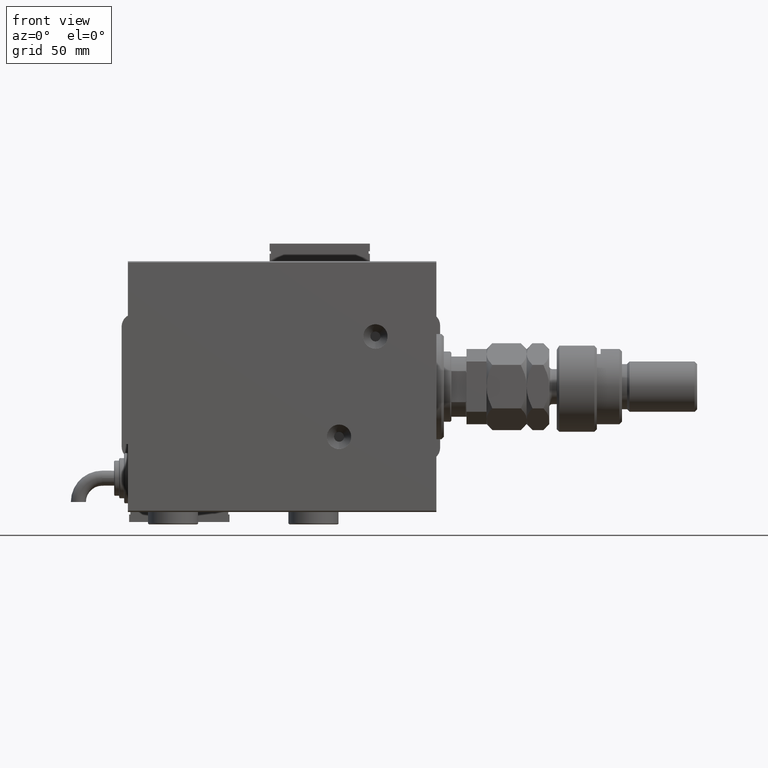
[diagram: clean part render]
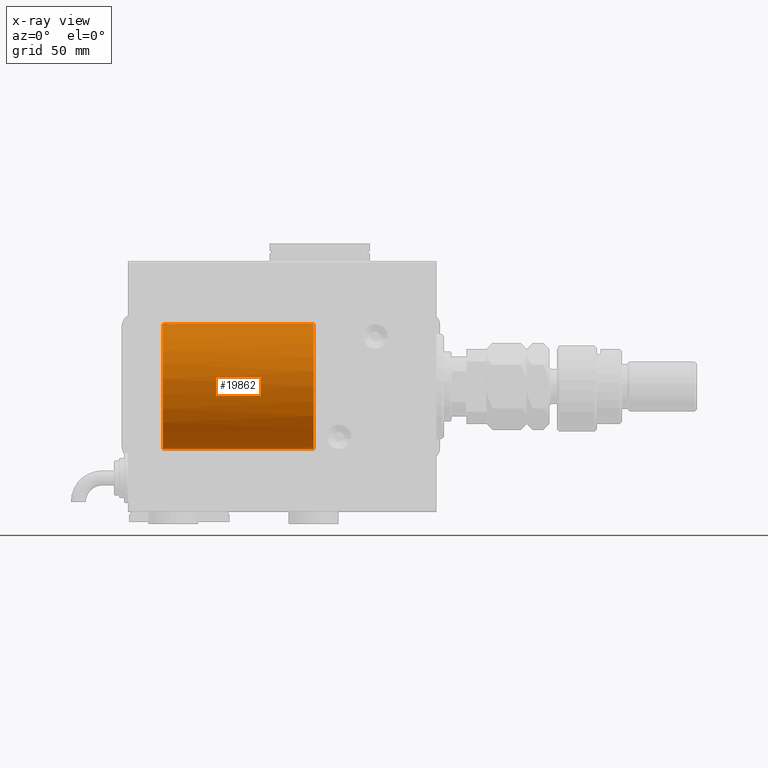
[diagram: x-ray — body ghosted, one internal face saturated and labeled with its STEP entity id]
A machine part, front view, then the same camera in x-ray: the body is ghosted and one INTERNAL B-rep face — a face not visible from any outside direction — is saturated and labeled: STEP entity #19862.
In plain terms, the highlighted cylindrical surface (partial cylindrical patch) has radius 25 mm, axis along (1, -0, 0).
Its self-contained STEP definition (entity closure, byte-faithful):
#109 = CARTESIAN_POINT ( 'NONE',  ( 50.65306428591296140, -1.882540433157142035, -24.92928812645855530 ) ) ;
#999 = CARTESIAN_POINT ( 'NONE',  ( 107.4841784005765390, -0.3254210271412219524, -24.99840249400844172 ) ) ;
#1082 = CARTESIAN_POINT ( 'NONE',  ( 48.99999999999999289, -2.499999999999999112, -24.87468592766549946 ) ) ;
#1441 = CARTESIAN_POINT ( 'NONE',  ( 49.32768231724819685, -2.483776228966070310, 24.87633159203414124 ) ) ;
#1522 = CARTESIAN_POINT ( 'NONE',  ( 51.50000000000000711, 1.027162637006531020E-28, 25.00000000000000000 ) ) ;
#1655 = CARTESIAN_POINT ( 'NONE',  ( 105.6490439016909590, -2.419770561643915574, -24.88263927071751169 ) ) ;
#1912 = ORIENTED_EDGE ( 'NONE', *, *, #49132, .F. ) ;
#2287 = CARTESIAN_POINT ( 'NONE',  ( 102.5000000000000000, -5.212883661637730998E-15, -25.00000000000000000 ) ) ;
#2468 = CIRCLE ( 'NONE', #58783, 25.00000000000000000 ) ;
#2479 = ORIENTED_EDGE ( 'NONE', *, *, #61893, .T. ) ;
#2598 = CARTESIAN_POINT ( 'NONE',  ( 103.3487886644088860, -1.884161199660622232, -24.92916496727982434 ) ) ;
#2912 = CARTESIAN_POINT ( 'NONE',  ( 103.1181404585135795, -1.653834020452944253, -24.94550385189586095 ) ) ;
#2993 = CARTESIAN_POINT ( 'NONE',  ( 105.6456066614863261, -2.420689345803777037, 24.88254961038872892 ) ) ;
#3204 = VERTEX_POINT ( 'NONE', #18310 ) ;
#3404 = CARTESIAN_POINT ( 'NONE',  ( 109.0000000000000000, 0.000000000000000000, 25.00000000000000000 ) ) ;
#6063 = VERTEX_POINT ( 'NONE', #62403 ) ;
#6117 = ORIENTED_EDGE ( 'NONE', *, *, #35328, .T. ) ;
#6548 = CARTESIAN_POINT ( 'NONE',  ( 106.9874981583439961, -1.525407911884373080, -24.95379469572362652 ) ) ;
#6864 = CARTESIAN_POINT ( 'NONE',  ( 102.8317235850604021, -1.255214705003182996, -24.96884293994578030 ) ) ;
#7279 = CARTESIAN_POINT ( 'NONE',  ( 49.64713194170840183, -2.420276907015970647, 24.88258984763800896 ) ) ;
#7570 = CARTESIAN_POINT ( 'NONE',  ( 103.0125018416560181, -1.525407911884385515, 24.95379469572361941 ) ) ;
#7889 = CARTESIAN_POINT ( 'NONE',  ( 106.5225677434019360, -1.989585286700267241, 24.92087098724766392 ) ) ;
#8115 = DIRECTION ( 'NONE',  ( -1.000000000000000000, -0.000000000000000000, -0.000000000000000000 ) ) ;
#8546 = CARTESIAN_POINT ( 'NONE',  ( 106.2508402392405600, -2.170728182476741708, 24.90574631553725027 ) ) ;
#8911 = DIRECTION ( 'NONE',  ( -1.000000000000000000, -0.000000000000000000, -0.000000000000000000 ) ) ;
#10231 = CARTESIAN_POINT ( 'NONE',  ( 50.88355788756845044, -1.651904870145708637, -24.94563238874589217 ) ) ;
#10644 = ORIENTED_EDGE ( 'NONE', *, *, #43603, .T. ) ;
#10890 = CARTESIAN_POINT ( 'NONE',  ( 51.37203761003154767, -0.8062086779018831084, -24.98745104517488613 ) ) ;
#11127 = CARTESIAN_POINT ( 'NONE',  ( 103.8927615416159114, -2.247417070759903712, -24.89885693081946272 ) ) ;
#11532 = CARTESIAN_POINT ( 'NONE',  ( 51.42007142650475515, -0.6483226838983270346, -24.99211332904765115 ) ) ;
#12087 = CARTESIAN_POINT ( 'NONE',  ( 103.0146196628290767, -1.528152964861313690, -24.95362559291379156 ) ) ;
#12503 = CARTESIAN_POINT ( 'NONE',  ( 50.88242608748713991, -1.653181027035657946, 24.94554706660810339 ) ) ;
#12716 = CARTESIAN_POINT ( 'NONE',  ( 102.5000000000000284, -0.3305063766663799973, -25.00000000000001421 ) ) ;
#12802 = CARTESIAN_POINT ( 'NONE',  ( 103.3461666385066167, -1.881857718844728522, 24.92933960374834612 ) ) ;
#13124 = CARTESIAN_POINT ( 'NONE',  ( 103.7461680457549704, -2.169003991399890197, 24.90589728951138682 ) ) ;
#13443 = CARTESIAN_POINT ( 'NONE',  ( 103.8896320349113722, -2.245863995402923141, 24.89899750494196340 ) ) ;
#14804 = ORIENTED_EDGE ( 'NONE', *, *, #57315, .T. ) ;
#15058 = CARTESIAN_POINT ( 'NONE',  ( 48.99999999999999289, -2.500000000000020872, 24.87468592766549946 ) ) ;
#15367 = CARTESIAN_POINT ( 'NONE',  ( 106.2538319542450154, -2.169003991399875986, -24.90589728951138682 ) ) ;
#15784 = CARTESIAN_POINT ( 'NONE',  ( 49.16525157688247560, -2.500000000000000000, -24.87468592766549591 ) ) ;
#16024 = CARTESIAN_POINT ( 'NONE',  ( 104.8367641036145415, -2.500125740978201616, -24.87467329022545570 ) ) ;
#16426 = CARTESIAN_POINT ( 'NONE',  ( 50.98702174305361012, -1.526036272874677246, -24.95375646594394681 ) ) ;
#16461 = CARTESIAN_POINT ( 'NONE',  ( 50.98585726474311741, -1.527525313726071587, 24.95366383271957389 ) ) ;
#17060 = CARTESIAN_POINT ( 'NONE',  ( 102.4999999999999716, -0.1631750940176211473, 25.00000000000000711 ) ) ;
#17293 = CARTESIAN_POINT ( 'NONE',  ( 103.4774322565980924, -1.989585286700254141, -24.92087098724766747 ) ) ;
#17373 = CARTESIAN_POINT ( 'NONE',  ( 107.1682764149395979, -1.255214705003186548, 24.96884293994578030 ) ) ;
#17690 = CARTESIAN_POINT ( 'NONE',  ( 106.6512113355911424, -1.884161199660635777, 24.92916496727982434 ) ) ;
#18310 = CARTESIAN_POINT ( 'NONE',  ( 107.5000000000000000, 3.061616978466108082E-15, -25.00000000000000000 ) ) ;
#18337 = CARTESIAN_POINT ( 'NONE',  ( 107.5000000000000000, 4.348838763822197640E-16, 25.00000000000000000 ) ) ;
#18750 = LINE ( 'NONE', #3404, #26842 ) ;
#19862 = ADVANCED_FACE ( 'NONE', ( #44803 ), #58557, .F. ) ;
#20841 = B_SPLINE_CURVE_WITH_KNOTS ( 'NONE', 3,
 ( #30126, #60524, #54960, #11532, #10890, #25556, #40599, #16426, #10231, #109, #39950, #59872, #45804, #51045, #45165, #40277, #15784, #1082 ),
 .UNSPECIFIED., .F., .F.,
 ( 4, 2, 2, 2, 2, 2, 2, 2, 4 ),
 ( 0.007821024441662318902, 0.008309959865666821655, 0.008798895289671324407, 0.009287830713675827160, 0.009776766137680331648, 0.01026570156168483440, 0.01075463698568933715, 0.01124357240969384164, 0.01173250783369834439 ),
 .UNSPECIFIED. ) ;
#20937 = CARTESIAN_POINT ( 'NONE',  ( 107.3721596940860650, -0.8058335233485485194, -24.98746277938382576 ) ) ;
#21681 = CARTESIAN_POINT ( 'NONE',  ( 51.43355748388673021, -0.6585516374675790541, 24.99313407876476845 ) ) ;
#22282 = CARTESIAN_POINT ( 'NONE',  ( 102.8298870971907348, -1.252049606094355783, 24.96900299967627035 ) ) ;
#22305 = CARTESIAN_POINT ( 'NONE',  ( 50.10843587962992274, -2.246820166682036657, 24.89891093247707232 ) ) ;
#22386 = CARTESIAN_POINT ( 'NONE',  ( 48.99999999999999289, 0.000000000000000000, 0.000000000000000000 ) ) ;
#22592 = CARTESIAN_POINT ( 'NONE',  ( 102.5000000000000000, -1.940242839436339586E-23, 25.00000000000000000 ) ) ;
#22829 = CARTESIAN_POINT ( 'NONE',  ( 102.5665064476025350, -0.6588655613945889611, -24.99312727339970763 ) ) ;
#23189 = ORIENTED_EDGE ( 'NONE', *, *, #58782, .T. ) ;
#23269 = CARTESIAN_POINT ( 'NONE',  ( 51.50000000000000711, 1.027162637006531020E-28, 25.00000000000000000 ) ) ;
#23331 = DIRECTION ( 'NONE',  ( -1.000000000000000000, -0.000000000000000000, -0.000000000000000000 ) ) ;
#24080 = CARTESIAN_POINT ( 'NONE',  ( 107.5000000000000000, 4.348838763822197640E-16, 25.00000000000000000 ) ) ;
#25381 = CIRCLE ( 'NONE', #36871, 25.00000000000000000 ) ;
#25431 = VECTOR ( 'NONE', #45410, 1000.000000000000000 ) ;
#25480 = CARTESIAN_POINT ( 'NONE',  ( 109.0000000000000000, 3.061616997868383043E-15, -25.00000000000000000 ) ) ;
#25556 = CARTESIAN_POINT ( 'NONE',  ( 51.24736354914203673, -1.107200042321252242, -24.97592421180084798 ) ) ;
#25801 = CARTESIAN_POINT ( 'NONE',  ( 107.5000000000000000, 3.061616978466108082E-15, -25.00000000000000000 ) ) ;
#26447 = EDGE_CURVE ( 'NONE', #44611, #37043, #35015, .T. ) ;
#26458 = CARTESIAN_POINT ( 'NONE',  ( 106.6538333614933833, -1.881857718844721639, -24.92933960374833546 ) ) ;
#26569 = CARTESIAN_POINT ( 'NONE',  ( 51.24630334641553731, -1.109321570839806981, 24.97582863464294789 ) ) ;
#26842 = VECTOR ( 'NONE', #23331, 1000.000000000000000 ) ;
#27199 = CARTESIAN_POINT ( 'NONE',  ( 49.80579201653556964, -2.372241595358196342, 24.88727458558063432 ) ) ;
#27484 = CARTESIAN_POINT ( 'NONE',  ( 104.6705231988572962, -2.483544361357290509, 24.87635491893501083 ) ) ;
#28126 = CARTESIAN_POINT ( 'NONE',  ( 105.3259657003946046, -2.484007091859783856, 24.87630842367763506 ) ) ;
#28716 = VERTEX_POINT ( 'NONE', #55103 ) ;
#30126 = CARTESIAN_POINT ( 'NONE',  ( 51.50000000000000711, 3.061616978460191625E-15, -25.00000000000000000 ) ) ;
#30444 = B_SPLINE_CURVE_WITH_KNOTS ( 'NONE', 3,
 ( #25801, #45725, #999, #49985, #20937, #40856, #40191, #6548, #60108, #26458, #34951, #15367, #35270, #55205, #1655, #39859, #60777, #16024, #59784, #54879, #35934, #11127, #55871, #17293, #2598, #2912, #12087, #6864, #37207, #22829, #12716, #2287 ),
 .UNSPECIFIED., .F., .F.,
 ( 4, 2, 2, 2, 2, 2, 2, 2, 2, 2, 2, 2, 2, 2, 2, 4 ),
 ( 0.007821024441662324106, 0.008309723826317930509, 0.008798423210973536912, 0.009287122595629143315, 0.009775821980284749718, 0.01026452136494035786, 0.01075322074959596426, 0.01124192013425157066, 0.01173061951890717707, 0.01221931890356278347, 0.01270801828821839161, 0.01319671767287399627, 0.01368541705752960441, 0.01417411644218520908, 0.01466281582684081722, 0.01564021459615204737 ),
 .UNSPECIFIED. ) ;
#31556 = DIRECTION ( 'NONE',  ( -1.000000000000000000, 0.000000000000000000, 0.000000000000000000 ) ) ;
#32097 = CARTESIAN_POINT ( 'NONE',  ( 49.16509202258268374, -2.500000000000022649, 24.87468592766549946 ) ) ;
#33941 = CARTESIAN_POINT ( 'NONE',  ( 109.0000000000000000, 3.061616997868383043E-15, -25.00000000000000000 ) ) ;
#34951 = CARTESIAN_POINT ( 'NONE',  ( 106.5253618224307957, -1.987446652080266940, -24.92104239223420592 ) ) ;
#35015 = B_SPLINE_CURVE_WITH_KNOTS ( 'NONE', 3,
 ( #57238, #32097, #1441, #7279, #27199, #22305, #51401, #61215, #62151, #12503, #16461, #52338, #26569, #21681, #41599, #23269 ),
 .UNSPECIFIED., .F., .F.,
 ( 4, 2, 2, 2, 2, 2, 2, 4 ),
 ( 0.01173250783369828368, 0.01222097117900499547, 0.01270943452431170725, 0.01319789786961841904, 0.01368636121492513257, 0.01417482456023184435, 0.01466328790553855614, 0.01564021459615198145 ),
 .UNSPECIFIED. ) ;
#35270 = CARTESIAN_POINT ( 'NONE',  ( 106.1103679650886136, -2.245863995402910707, -24.89899750494197050 ) ) ;
#35328 = EDGE_CURVE ( 'NONE', #36519, #28716, #20841, .T. ) ;
#35934 = CARTESIAN_POINT ( 'NONE',  ( 104.1956433908369490, -2.372734907014180550, -24.88722742718433523 ) ) ;
#36241 = VERTEX_POINT ( 'NONE', #49352 ) ;
#36519 = VERTEX_POINT ( 'NONE', #49926 ) ;
#36871 = AXIS2_PLACEMENT_3D ( 'NONE', #61291, #31556, #41052 ) ;
#36981 = CARTESIAN_POINT ( 'NONE',  ( 104.8329350482193689, -2.499872792855102333, 24.87469871246081254 ) ) ;
#37043 = VERTEX_POINT ( 'NONE', #1522 ) ;
#37207 = CARTESIAN_POINT ( 'NONE',  ( 102.7539362090593187, -1.109818057797418378, -24.97580694515541921 ) ) ;
#37291 = CARTESIAN_POINT ( 'NONE',  ( 107.5000000000000284, -0.3305063766663782210, 25.00000000000000355 ) ) ;
#37615 = CARTESIAN_POINT ( 'NONE',  ( 106.8818595414864348, -1.653834020452955134, 24.94550385189584674 ) ) ;
#37830 = LINE ( 'NONE', #57763, #61467 ) ;
#38625 = CARTESIAN_POINT ( 'NONE',  ( 109.0000000000000000, 0.000000000000000000, 0.000000000000000000 ) ) ;
#39859 = CARTESIAN_POINT ( 'NONE',  ( 105.3294768011426754, -2.483544361357276742, -24.87635491893501793 ) ) ;
#39950 = CARTESIAN_POINT ( 'NONE',  ( 50.52448121535760350, -1.988128153583516244, -24.92098794577093201 ) ) ;
#40191 = CARTESIAN_POINT ( 'NONE',  ( 107.1701129028092510, -1.252049606094345124, -24.96900299967627390 ) ) ;
#40277 = CARTESIAN_POINT ( 'NONE',  ( 49.32776091233718319, -2.483776351160944529, -24.87633163959054983 ) ) ;
#40599 = CARTESIAN_POINT ( 'NONE',  ( 51.16979534655761341, -1.252609383468746618, -24.96897511313218487 ) ) ;
#40856 = CARTESIAN_POINT ( 'NONE',  ( 107.2476025101954917, -1.106703319666886953, -24.97594585958023927 ) ) ;
#41052 = DIRECTION ( 'NONE',  ( 0.000000000000000000, 0.000000000000000000, 1.000000000000000000 ) ) ;
#41599 = CARTESIAN_POINT ( 'NONE',  ( 51.49999999999998579, -0.3303467437460066436, 24.99999999999999289 ) ) ;
#42020 = VERTEX_POINT ( 'NONE', #53035 ) ;
#42048 = EDGE_CURVE ( 'NONE', #6063, #37043, #18750, .T. ) ;
#42202 = CARTESIAN_POINT ( 'NONE',  ( 105.1632358963854301, -2.500125740978215383, 24.87467329022545215 ) ) ;
#42205 = ORIENTED_EDGE ( 'NONE', *, *, #26447, .T. ) ;
#42511 = CARTESIAN_POINT ( 'NONE',  ( 105.8043566091630225, -2.372734907014194761, 24.88722742718432812 ) ) ;
#42841 = CARTESIAN_POINT ( 'NONE',  ( 102.6278403059138924, -0.8058335233485502958, 24.98746277938382931 ) ) ;
#43164 = CARTESIAN_POINT ( 'NONE',  ( 102.5158215994233899, -0.3254210271412255606, 24.99840249400844527 ) ) ;
#43603 = EDGE_CURVE ( 'NONE', #3204, #62690, #30444, .T. ) ;
#44090 = VECTOR ( 'NONE', #64006, 1000.000000000000000 ) ;
#44494 = EDGE_CURVE ( 'NONE', #6063, #62791, #60781, .T. ) ;
#44611 = VERTEX_POINT ( 'NONE', #15058 ) ;
#44722 = EDGE_LOOP ( 'NONE', ( #63784, #23189, #10644, #14804, #6117, #2479, #42205, #54064, #52510, #1912 ) ) ;
#44803 = FACE_OUTER_BOUND ( 'NONE', #44722, .T. ) ;
#45165 = CARTESIAN_POINT ( 'NONE',  ( 49.64751827305907028, -2.420184345106186186, -24.88259891050737238 ) ) ;
#45410 = DIRECTION ( 'NONE',  ( -1.000000000000000000, -0.000000000000000000, -0.000000000000000000 ) ) ;
#45725 = CARTESIAN_POINT ( 'NONE',  ( 107.5000000000000142, -0.1631750940176187603, -25.00000000000000711 ) ) ;
#45804 = CARTESIAN_POINT ( 'NONE',  ( 50.10917147430357232, -2.246461690108201736, -24.89894345481346605 ) ) ;
#47103 = CARTESIAN_POINT ( 'NONE',  ( 102.7523974898044656, -1.106703319666890728, 24.97594585958023217 ) ) ;
#47410 = CARTESIAN_POINT ( 'NONE',  ( 102.5798509077906715, -0.6480119923854282815, 24.99212088949390420 ) ) ;
#47726 = CARTESIAN_POINT ( 'NONE',  ( 107.2460637909407239, -1.109818057797421931, 24.97580694515542987 ) ) ;
#49132 = EDGE_CURVE ( 'NONE', #42020, #62791, #37830, .T. ) ;
#49352 = CARTESIAN_POINT ( 'NONE',  ( 109.0000000000000000, 3.061616997868383043E-15, -25.00000000000000000 ) ) ;
#49926 = CARTESIAN_POINT ( 'NONE',  ( 51.50000000000000711, 3.061616978460191625E-15, -25.00000000000000000 ) ) ;
#49985 = CARTESIAN_POINT ( 'NONE',  ( 107.4201490922092574, -0.6480119923854237296, -24.99212088949390420 ) ) ;
#50274 = CARTESIAN_POINT ( 'NONE',  ( 102.5000000000000000, -5.212883661637730998E-15, -25.00000000000000000 ) ) ;
#51045 = CARTESIAN_POINT ( 'NONE',  ( 49.80644974582759943, -2.372022405456399863, -24.88729565459323823 ) ) ;
#51401 = CARTESIAN_POINT ( 'NONE',  ( 50.25192776697308261, -2.170095684020228788, 24.90580152148297088 ) ) ;
#51998 = CARTESIAN_POINT ( 'NONE',  ( 103.4746381775692043, -1.987446652080280707, 24.92104239223420592 ) ) ;
#52338 = CARTESIAN_POINT ( 'NONE',  ( 51.16859437476860251, -1.254655768619018508, 24.96887084276583835 ) ) ;
#52510 = ORIENTED_EDGE ( 'NONE', *, *, #44494, .T. ) ;
#52635 = CARTESIAN_POINT ( 'NONE',  ( 104.3509560983090410, -2.419770561643928897, 24.88263927071751525 ) ) ;
#53035 = CARTESIAN_POINT ( 'NONE',  ( 109.0000000000000000, 0.000000000000000000, 25.00000000000000000 ) ) ;
#53390 = DIRECTION ( 'NONE',  ( -1.000000000000000000, 0.000000000000000000, 0.000000000000000000 ) ) ;
#54064 = ORIENTED_EDGE ( 'NONE', *, *, #42048, .F. ) ;
#54215 = AXIS2_PLACEMENT_3D ( 'NONE', #38625, #8911, #63462 ) ;
#54879 = CARTESIAN_POINT ( 'NONE',  ( 104.3543933385136739, -2.420689345803764159, -24.88254961038873958 ) ) ;
#54960 = CARTESIAN_POINT ( 'NONE',  ( 51.48416326589131842, -0.3255777637343010844, -24.99840095034441134 ) ) ;
#55103 = CARTESIAN_POINT ( 'NONE',  ( 48.99999999999999289, -2.499999999999999112, -24.87468592766549946 ) ) ;
#55205 = CARTESIAN_POINT ( 'NONE',  ( 105.8078834240580761, -2.371528299825757191, -24.88734287464371064 ) ) ;
#55215 = LINE ( 'NONE', #25480, #25431 ) ;
#55871 = CARTESIAN_POINT ( 'NONE',  ( 103.7491597607594400, -2.170728182476727497, -24.90574631553724672 ) ) ;
#57238 = CARTESIAN_POINT ( 'NONE',  ( 48.99999999999999289, -2.500000000000020872, 24.87468592766549946 ) ) ;
#57315 = EDGE_CURVE ( 'NONE', #62690, #36519, #63688, .T. ) ;
#57543 = CARTESIAN_POINT ( 'NONE',  ( 106.9853803371709375, -1.528152964861319463, 24.95362559291378446 ) ) ;
#57763 = CARTESIAN_POINT ( 'NONE',  ( 109.0000000000000000, 0.000000000000000000, 25.00000000000000000 ) ) ;
#57868 = CARTESIAN_POINT ( 'NONE',  ( 103.1158761721353017, -1.651251241585111273, 24.94567559498348785 ) ) ;
#58557 = CYLINDRICAL_SURFACE ( 'NONE', #54215, 25.00000000000000000 ) ;
#58782 = EDGE_CURVE ( 'NONE', #36241, #3204, #55215, .T. ) ;
#58783 = AXIS2_PLACEMENT_3D ( 'NONE', #22386, #53390, #63206 ) ;
#59784 = CARTESIAN_POINT ( 'NONE',  ( 104.6740342996053670, -2.484007091859770089, -24.87630842367763151 ) ) ;
#59872 = CARTESIAN_POINT ( 'NONE',  ( 50.25274507586783557, -2.169637367381581416, -24.90584203439813393 ) ) ;
#60108 = CARTESIAN_POINT ( 'NONE',  ( 106.8841238278646983, -1.651251241585105944, -24.94567559498348785 ) ) ;
#60524 = CARTESIAN_POINT ( 'NONE',  ( 51.50000000000000000, -0.1632539067686826773, -25.00000000000001066 ) ) ;
#60777 = CARTESIAN_POINT ( 'NONE',  ( 105.1670649517805742, -2.499872792855088566, -24.87469871246081965 ) ) ;
#60781 = B_SPLINE_CURVE_WITH_KNOTS ( 'NONE', 3,
 ( #22592, #17060, #43164, #47410, #42841, #47103, #22282, #7570, #57868, #12802, #51998, #13124, #13443, #62444, #52635, #27484, #36981, #42202, #28126, #2993, #42511, #62127, #8546, #7889, #17690, #37615, #57543, #17373, #47726, #62775, #37291, #18337 ),
 .UNSPECIFIED., .F., .F.,
 ( 4, 2, 2, 2, 2, 2, 2, 2, 2, 2, 2, 2, 2, 2, 2, 4 ),
 ( 0.007821024441662325841, 0.008309723826317939183, 0.008798423210973550790, 0.009287122595629162397, 0.009775821980284775739, 0.01026452136494038735, 0.01075322074959600069, 0.01124192013425161230, 0.01173061951890722390, 0.01221931890356283724, 0.01270801828821845059, 0.01319671767287406219, 0.01368541705752967380, 0.01417411644218528714, 0.01466281582684090048, 0.01564021459615210982 ),
 .UNSPECIFIED. ) ;
#61215 = CARTESIAN_POINT ( 'NONE',  ( 50.52344858756305968, -1.988904927987651616, 24.92092538195026918 ) ) ;
#61291 = CARTESIAN_POINT ( 'NONE',  ( 109.0000000000000000, 0.000000000000000000, 0.000000000000000000 ) ) ;
#61467 = VECTOR ( 'NONE', #8115, 1000.000000000000000 ) ;
#61803 = EDGE_CURVE ( 'NONE', #36241, #42020, #25381, .T. ) ;
#61893 = EDGE_CURVE ( 'NONE', #28716, #44611, #2468, .T. ) ;
#62127 = CARTESIAN_POINT ( 'NONE',  ( 106.1072384583840886, -2.247417070759915703, 24.89885693081946627 ) ) ;
#62151 = CARTESIAN_POINT ( 'NONE',  ( 50.65198134576846201, -1.883478992777950944, 24.92921645066837399 ) ) ;
#62403 = CARTESIAN_POINT ( 'NONE',  ( 102.5000000000000000, -1.940242839436339586E-23, 25.00000000000000000 ) ) ;
#62444 = CARTESIAN_POINT ( 'NONE',  ( 104.1921165759419239, -2.371528299825769626, 24.88734287464370354 ) ) ;
#62690 = VERTEX_POINT ( 'NONE', #50274 ) ;
#62775 = CARTESIAN_POINT ( 'NONE',  ( 107.4334935523974934, -0.6588655613945880729, 24.99312727339969697 ) ) ;
#62791 = VERTEX_POINT ( 'NONE', #24080 ) ;
#63206 = DIRECTION ( 'NONE',  ( 0.000000000000000000, 0.000000000000000000, 1.000000000000000000 ) ) ;
#63462 = DIRECTION ( 'NONE',  ( 0.000000000000000000, 0.000000000000000000, 1.000000000000000000 ) ) ;
#63688 = LINE ( 'NONE', #33941, #44090 ) ;
#63784 = ORIENTED_EDGE ( 'NONE', *, *, #61803, .F. ) ;
#64006 = DIRECTION ( 'NONE',  ( -1.000000000000000000, -0.000000000000000000, -0.000000000000000000 ) ) ;